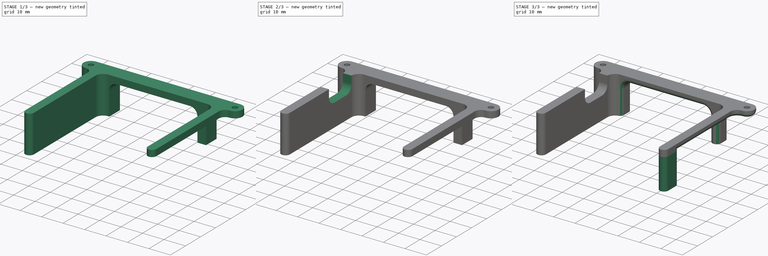
[diagram: build sequence overview — one tinted view per stage of 3, left to right]
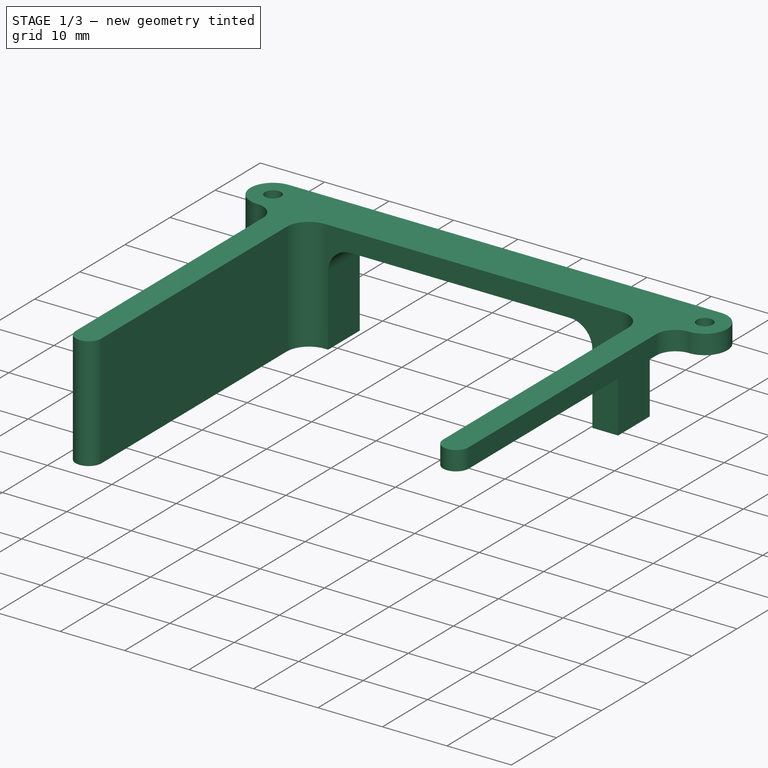
[diagram: stage 1 of 3 — iso view after this stage's code; geometry added in this stage tinted green]
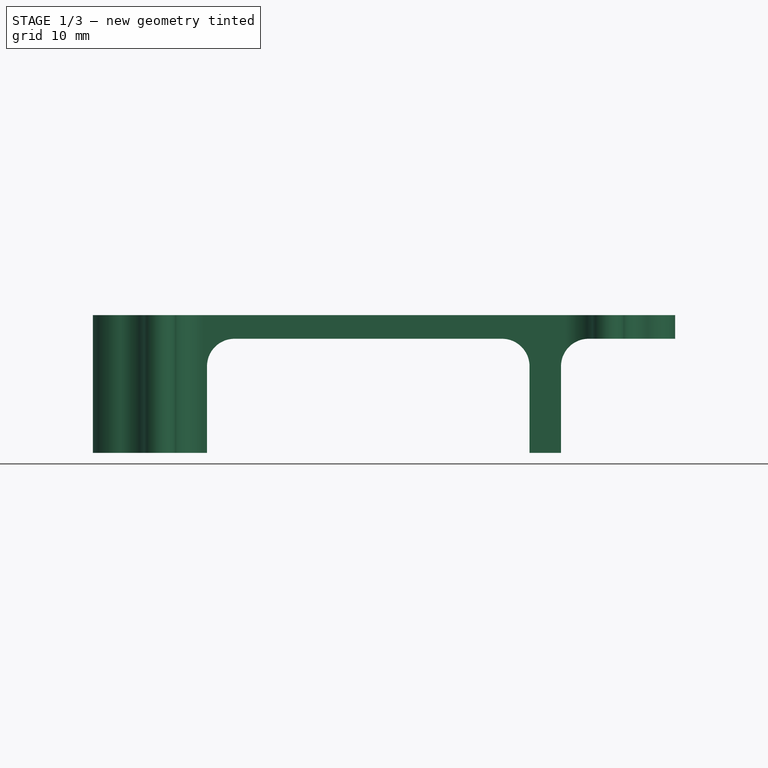
[diagram: stage 1 of 3 — front view after this stage's code; geometry added in this stage tinted green]
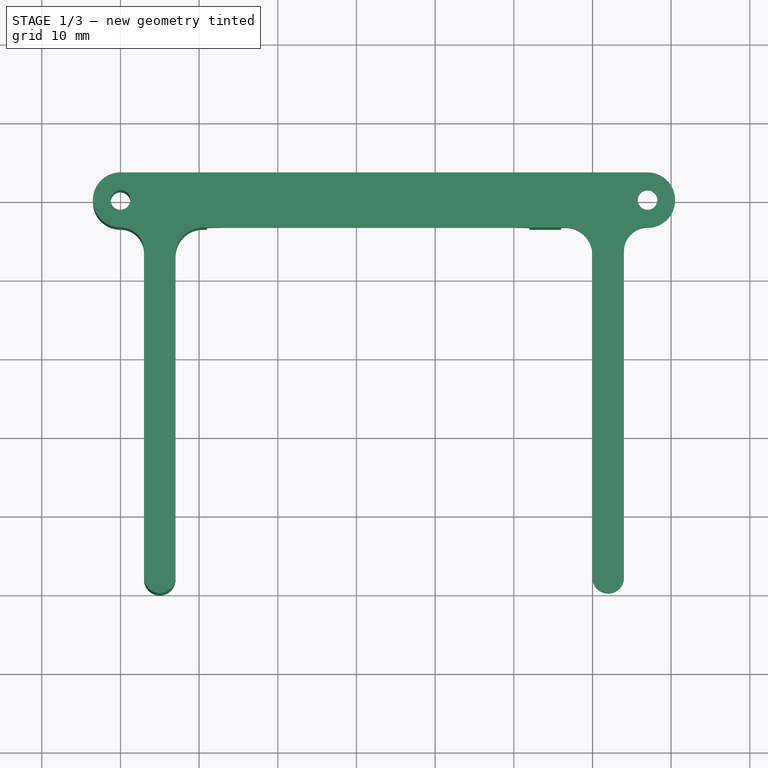
[diagram: stage 1 of 3 — top view after this stage's code; geometry added in this stage tinted green]
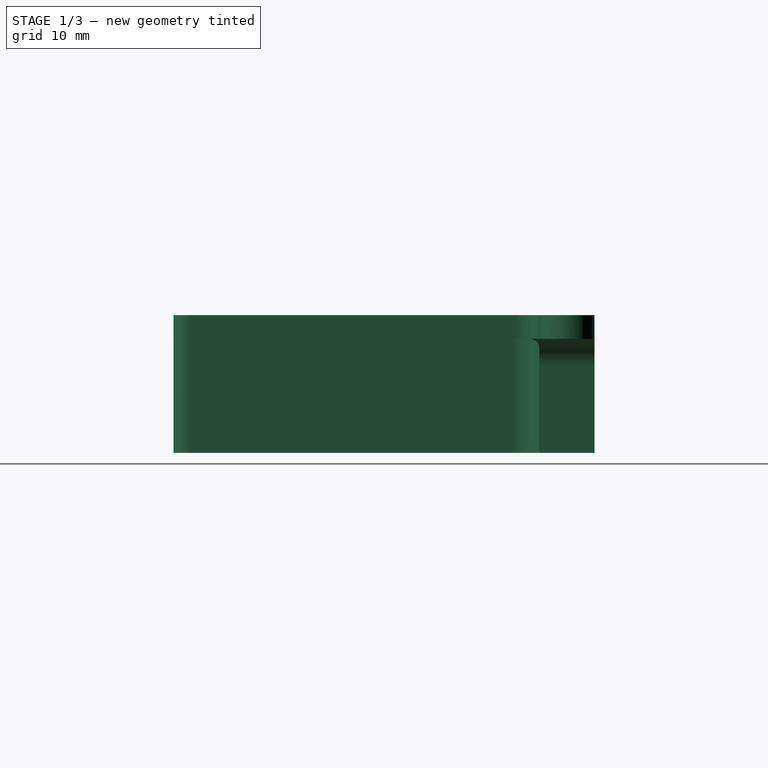
[diagram: stage 1 of 3 — right view after this stage's code; geometry added in this stage tinted green]
FCSTD DOCUMENT  (FreeCAD 0.21R33771 (Git))
Label: U1MB 600XL bracket
License: All rights reserved
LicenseURL: http://en.wikipedia.org/wiki/All_rights_reserved
objects: Sketcher::SketchObject×4, PartDesign::Pad×2, PartDesign::Pocket×2, PartDesign::Fillet×1, PartDesign::Body×1
note: 15 computed .brp shape members not serialized (recipe doc carries the construction recipe); baked Part::Feature solids carry a one-line shape summary decoded from their .brp

FEATURE [Sketcher::SketchObject] Sketch
  FullyConstrained = true
  MapMode = 5
  Support = -> [XY_Plane]
  sketch-geometry (16):
    g0: LineSegment StartX=-6e-16 StartY=3.5 StartZ=0 EndX=67 EndY=3.5 EndZ=0
    g1: ArcOfCircle CenterX=62 CenterY=-48 CenterZ=0 NormalX=0 NormalY=0 NormalZ=1 AngleXU=0 Radius=2 StartAngle=3.14159 EndAngle=6.28319
    g2: LineSegment StartX=60 StartY=-48 StartZ=0 EndX=60 EndY=-7 EndZ=0
    g3: ArcOfCircle CenterX=56.5 CenterY=-7 CenterZ=0 NormalX=0 NormalY=0 NormalZ=1 AngleXU=0 Radius=3.5 StartAngle=1e-16 EndAngle=1.5708
    g4: LineSegment StartX=56.5 StartY=-3.5 StartZ=0 EndX=10.5 EndY=-3.5 EndZ=0
    g5: ArcOfCircle CenterX=10.5 CenterY=-7 CenterZ=0 NormalX=0 NormalY=0 NormalZ=1 AngleXU=0 Radius=3.5 StartAngle=1.5708 EndAngle=3.14159
    g6: LineSegment StartX=7 StartY=-7 StartZ=0 EndX=7 EndY=-48 EndZ=0
    g7: ArcOfCircle CenterX=5 CenterY=-48 CenterZ=0 NormalX=0 NormalY=0 NormalZ=1 AngleXU=0 Radius=2 StartAngle=3.14159 EndAngle=6.28319
    g8: ArcOfCircle CenterX=-6e-16 CenterY=0 CenterZ=0 NormalX=0 NormalY=0 NormalZ=1 AngleXU=0 Radius=3.5 StartAngle=1.5708 EndAngle=4.71239
    g9: Circle CenterX=-6e-16 CenterY=0 CenterZ=0 NormalX=0 NormalY=0 NormalZ=1 AngleXU=0 Radius=1.25
    g10: Circle CenterX=67 CenterY=0 CenterZ=0 NormalX=0 NormalY=0 NormalZ=1 AngleXU=0 Radius=1.25
    g11: LineSegment StartX=3 StartY=-48 StartZ=0 EndX=3 EndY=-6.5 EndZ=0
    g12: LineSegment StartX=64 StartY=-48 StartZ=0 EndX=64 EndY=-6.5 EndZ=0
    g13: ArcOfCircle CenterX=-6e-16 CenterY=-6.5 CenterZ=0 NormalX=0 NormalY=0 NormalZ=1 AngleXU=0 Radius=3 StartAngle=0 EndAngle=1.5708
    g14: ArcOfCircle CenterX=67 CenterY=-6.5 CenterZ=0 NormalX=0 NormalY=0 NormalZ=1 AngleXU=0 Radius=3 StartAngle=1.5708 EndAngle=3.14159
    g15: ArcOfCircle CenterX=67 CenterY=0 CenterZ=0 NormalX=0 NormalY=0 NormalZ=1 AngleXU=0 Radius=3.5 StartAngle=4.71239 EndAngle=7.85398
  constraints (50):
    c: Coincident(g1,g2)
    c: Vertical(g2)
    c: Tangent(g2,g3) = -1.5708
    c: Coincident(g3,g4)
    c: Horizontal(g4)
    c: Tangent(g4,g5) = -1.5708
    c: Coincident(g5,g6)
    c: Vertical(g6)
    c: Tangent(g6,g7) = 1.5708
    c: Coincident(g0,g8)
    c: Equal(g8,g3)
    c: Equal(g8,g5)
    c: Horizontal(g1,g1)
    c: Horizontal(g7,g7)
    c: Horizontal(g0)
    c: Vertical(g0,g8)
    c: Vertical(g3,g3)
    c: Horizontal(g5,g5)
    c: Diameter(g8) = 7
    c: Coincident(g-1,g8)
    c: Equal(g9,g10)
    c: Horizontal(g9,g10)
    c: Diameter(g9) = 2.5
    c: DistanceX(g9,g10) = 67
    c: Vertical(g0,g10)
    c: Coincident(g9,g8)
    c: DistanceY(g7,g8) = 48
    c: DistanceY(g4,g0) = 7
    c: DistanceX(g1,g10) = 5
    c: Diameter(g1) = 4
    c: Equal(g7,g1)
    c: DistanceX(g8,g7) = 5
    c: Vertical(g8,g0)
    c: Vertical(g14,g0)
    c: Coincident(g11,g7)
    c: Vertical(g11)
    c: Coincident(g12,g1)
    c: Vertical(g12)
    c: Coincident(g13,g11)
    c: Coincident(g13,g8)
    c: Horizontal(g13,g11)
    c: Vertical(g13,g8)
    c: Coincident(g14,g12)
    c: Vertical(g14,g14)
    c: Horizontal(g12,g14)
    c: Horizontal(g1,g1)
    c: Horizontal(g7,g1)
    c: Coincident(g15,g10)
    c: Coincident(g15,g14)
    c: Coincident(g15,g0)
FEATURE [PartDesign::Pad] Pad
  Direction = (0,0,1)
  Length = 17.5
  Length2 = 10
  Profile = -> Sketch
  ReferenceAxis = -> Sketch [N_Axis]
  Reversed = true
  Type = 0
FEATURE [Sketcher::SketchObject] Sketch001
  ExternalGeometry = -> [Pad]
  FullyConstrained = true
  MapMode = 5
  Placement = pos=(0,3.5,0) rot=(0,0.707107,0.707107;3.14159rad)
  Support = -> [Pad]
  sketch-geometry (11):
    g0: LineSegment StartX=-11 StartY=-17.5 StartZ=0 EndX=-52 EndY=-17.5 EndZ=0
    g1: LineSegment StartX=-48.5 StartY=-3 StartZ=0 EndX=-14.5 EndY=-3 EndZ=0
    g2: LineSegment StartX=-11 StartY=-6.5 StartZ=0 EndX=-11 EndY=-17.5 EndZ=0
    g3: ArcOfCircle CenterX=-14.5 CenterY=-6.5 CenterZ=0 NormalX=0 NormalY=0 NormalZ=1 AngleXU=0 Radius=3.5 StartAngle=0 EndAngle=1.5708
    g4: LineSegment StartX=-52 StartY=-17.5 StartZ=0 EndX=-52 EndY=-6.5 EndZ=0
    g5: ArcOfCircle CenterX=-48.5 CenterY=-6.5 CenterZ=0 NormalX=0 NormalY=0 NormalZ=1 AngleXU=0 Radius=3.5 StartAngle=1.5708 EndAngle=3.14159
    g6: LineSegment StartX=-56 StartY=-17.5 StartZ=0 EndX=-56 EndY=-6.5 EndZ=0
    g7: ArcOfCircle CenterX=-59.5 CenterY=-6.5 CenterZ=0 NormalX=0 NormalY=0 NormalZ=1 AngleXU=0 Radius=3.5 StartAngle=0 EndAngle=1.5708
    g8: LineSegment StartX=-59.5 StartY=-3 StartZ=0 EndX=-70.5 EndY=-3 EndZ=0
    g9: LineSegment StartX=-70.5 StartY=-3 StartZ=0 EndX=-70.5 EndY=-17.5 EndZ=0
    g10: LineSegment StartX=-70.5 StartY=-17.5 StartZ=0 EndX=-56 EndY=-17.5 EndZ=0
  constraints (35):
    c: Horizontal(g0)
    c: Horizontal(g1)
    c: Coincident(g2,g0)
    c: Vertical(g2)
    c: Horizontal(g-4,g0)
    c: DistanceY(g1,g-1) = 3
    c: DistanceX(g0,g-4) = 8
    c: Coincident(g3,g2)
    c: Coincident(g3,g1)
    c: Horizontal(g3,g2)
    c: Vertical(g1,g3)
    c: Diameter(g3) = 7
    c: DistanceX(g-3,g0) = 15
    c: Coincident(g4,g0)
    c: Vertical(g4)
    c: Coincident(g5,g4)
    c: Coincident(g5,g1)
    c: Horizontal(g4,g5)
    c: Vertical(g1,g5)
    c: Equal(g3,g5)
    c: Vertical(g6)
    c: Tangent(g6,g7) = -1.5708
    c: Coincident(g7,g8)
    c: Horizontal(g8)
    c: Coincident(g8,g9)
    c: Vertical(g9)
    c: Coincident(g9,g10)
    c: Horizontal(g10)
    c: Coincident(g10,g6)
    c: Horizontal(g6,g0)
    c: Vertical(g7,g7)
    c: Horizontal(g6,g4)
    c: Equal(g3,g7)
    c: DistanceX(g6,g0) = 4
    c: DistanceX(g9,g-3) = 3.5
FEATURE [PartDesign::Pocket] Pocket
  BaseFeature = -> Pad
  Direction = (0,-1,2e-16)
  Length = 5
  Length2 = 5
  Midplane = true
  Profile = -> Sketch001
  ReferenceAxis = -> Sketch001 [N_Axis]
  Type = 1
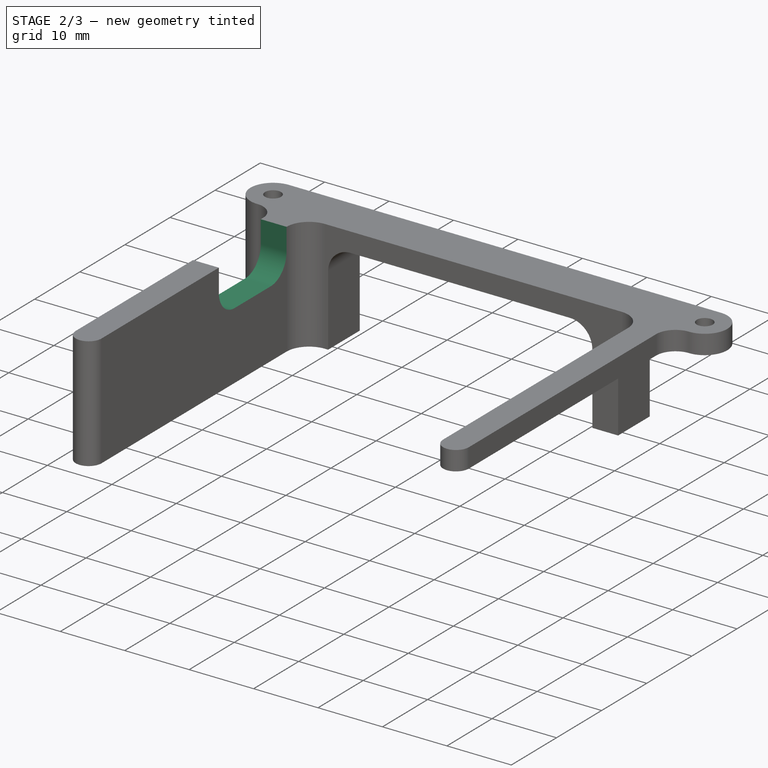
[diagram: stage 2 of 3 — iso view after this stage's code; geometry added in this stage tinted green]
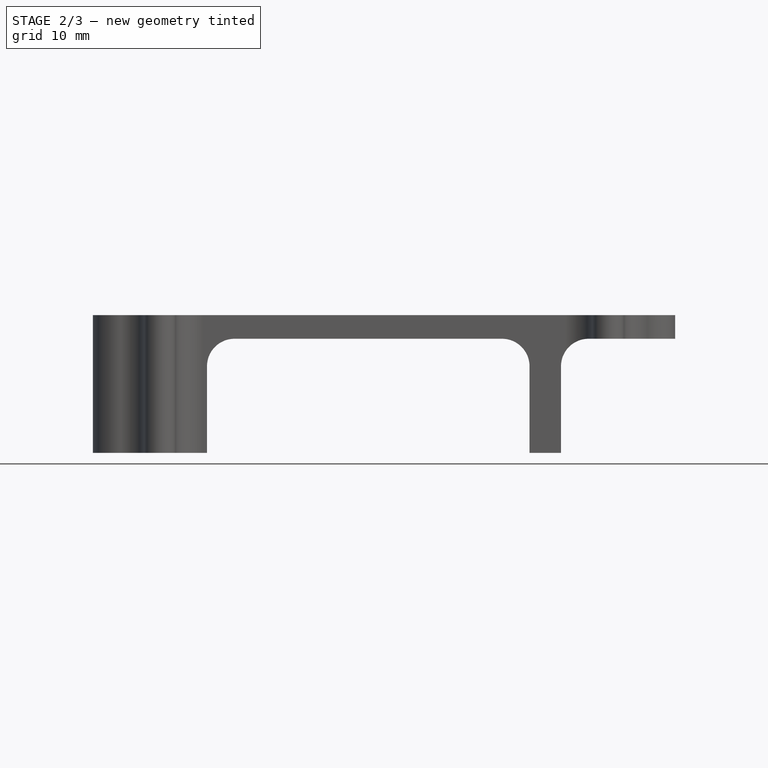
[diagram: stage 2 of 3 — front view after this stage's code; geometry added in this stage tinted green]
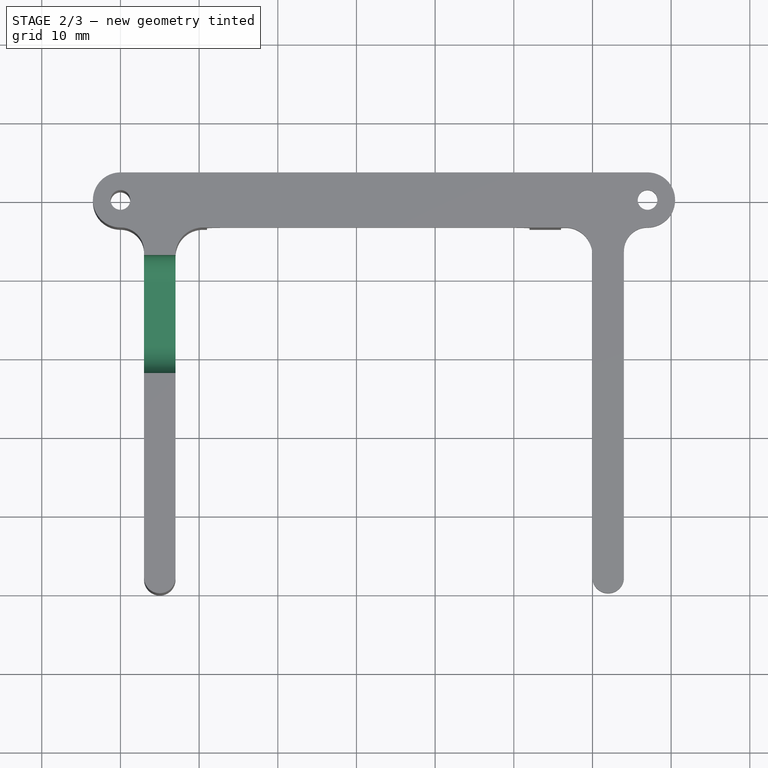
[diagram: stage 2 of 3 — top view after this stage's code; geometry added in this stage tinted green]
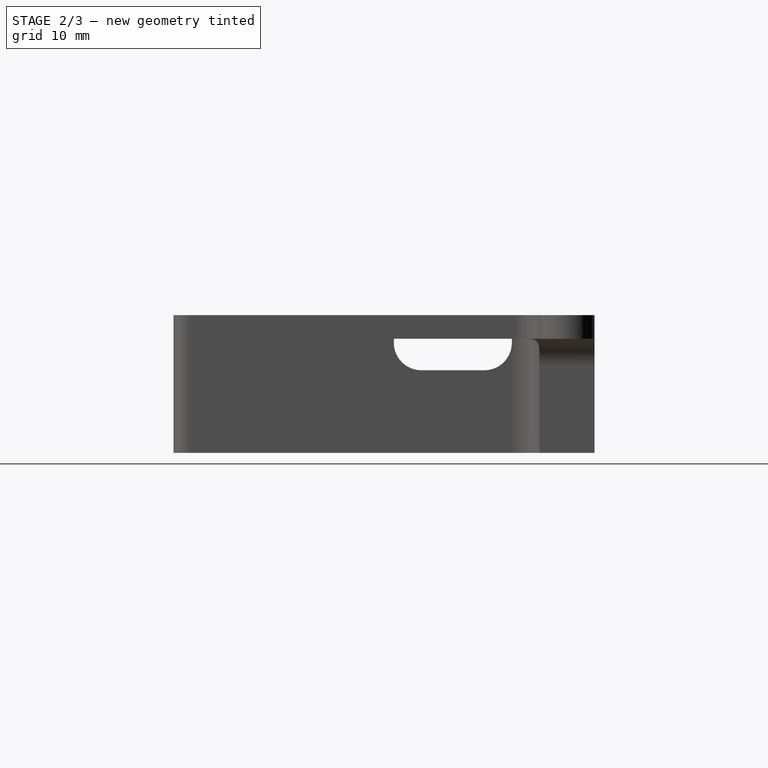
[diagram: stage 2 of 3 — right view after this stage's code; geometry added in this stage tinted green]
FEATURE [Sketcher::SketchObject] Sketch002
  FullyConstrained = true
  MapMode = 5
  Placement = pos=(3,0,0) rot=(0.57735,-0.57735,-0.57735;2.0944rad)
  Support = -> [Pocket]
  sketch-geometry (6):
    g0: LineSegment StartX=7 StartY=0 StartZ=0 EndX=7 EndY=-3.5 EndZ=0
    g1: ArcOfCircle CenterX=10.5 CenterY=-3.5 CenterZ=0 NormalX=0 NormalY=0 NormalZ=1 AngleXU=0 Radius=3.5 StartAngle=3.14159 EndAngle=4.71239
    g2: LineSegment StartX=10.5 StartY=-7 StartZ=0 EndX=18.5 EndY=-7 EndZ=0
    g3: ArcOfCircle CenterX=18.5 CenterY=-3.5 CenterZ=0 NormalX=0 NormalY=0 NormalZ=1 AngleXU=0 Radius=3.5 StartAngle=4.71239 EndAngle=6.28319
    g4: LineSegment StartX=22 StartY=-3.5 StartZ=0 EndX=22 EndY=0 EndZ=0
    g5: LineSegment StartX=22 StartY=0 StartZ=0 EndX=7 EndY=0 EndZ=0
  constraints (18):
    c: PointOnObject(g0,g-1)
    c: Vertical(g0)
    c: Tangent(g0,g1) = -1.5708
    c: Coincident(g1,g2)
    c: Horizontal(g2)
    c: Tangent(g2,g3) = -1.5708
    c: Coincident(g3,g4)
    c: PointOnObject(g4,g-1)
    c: Vertical(g4)
    c: Coincident(g4,g5)
    c: Coincident(g5,g0)
    c: DistanceX(g-1,g0) = 7
    c: DistanceX(g-1,g4) = 22
    c: Horizontal(g3,g3)
    c: Vertical(g1,g1)
    c: Equal(g3,g1)
    c: Diameter(g3) = 7
    c: DistanceY(g2,g4) = 7
FEATURE [PartDesign::Pocket] Pocket001
  BaseFeature = -> Pocket
  Direction = (1,0,0)
  Length = 5
  Length2 = 5
  Profile = -> Sketch002
  ReferenceAxis = -> Sketch002 [N_Axis]
  Type = 0
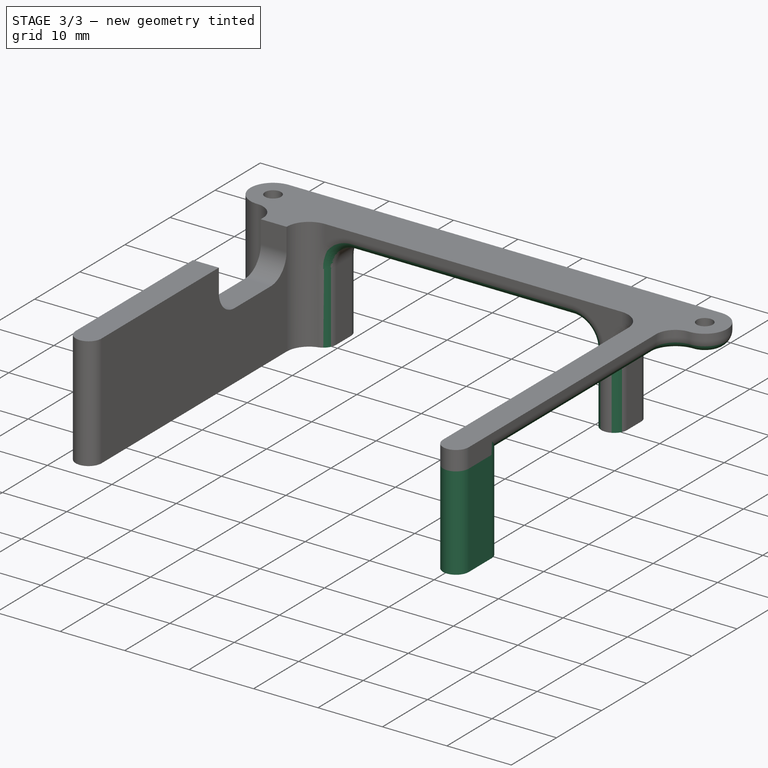
[diagram: stage 3 of 3 — iso view after this stage's code; geometry added in this stage tinted green]
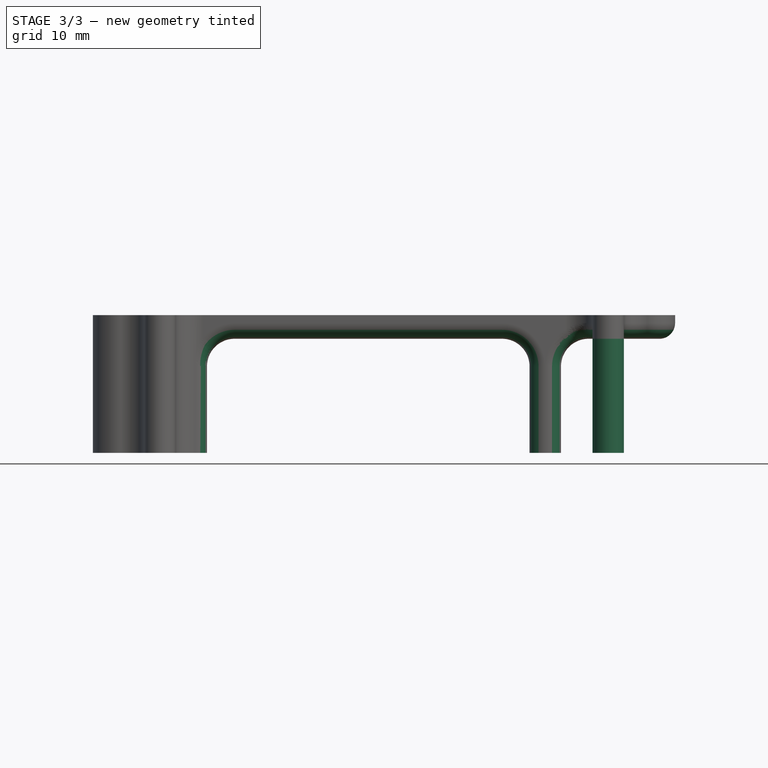
[diagram: stage 3 of 3 — front view after this stage's code; geometry added in this stage tinted green]
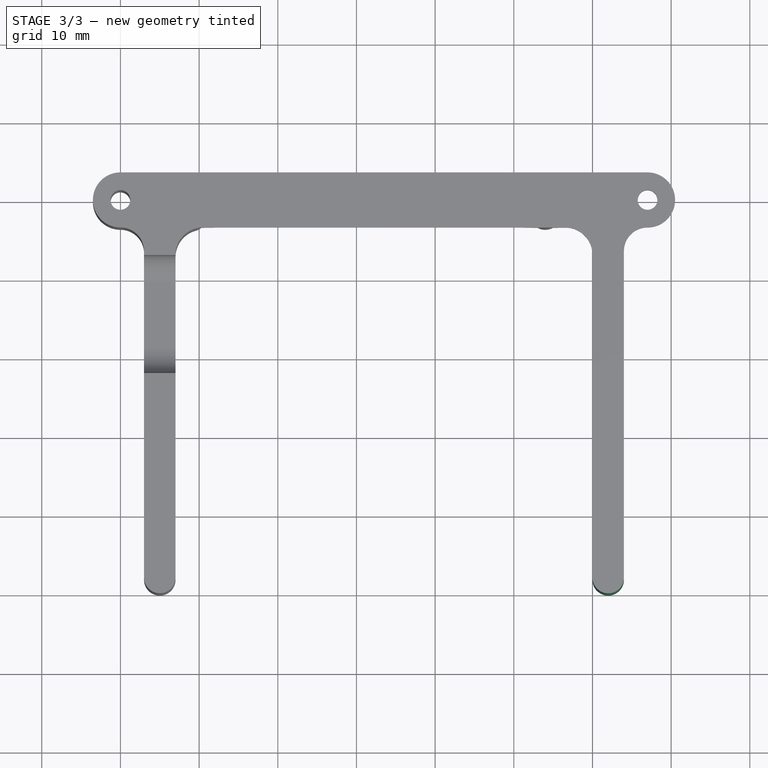
[diagram: stage 3 of 3 — top view after this stage's code; geometry added in this stage tinted green]
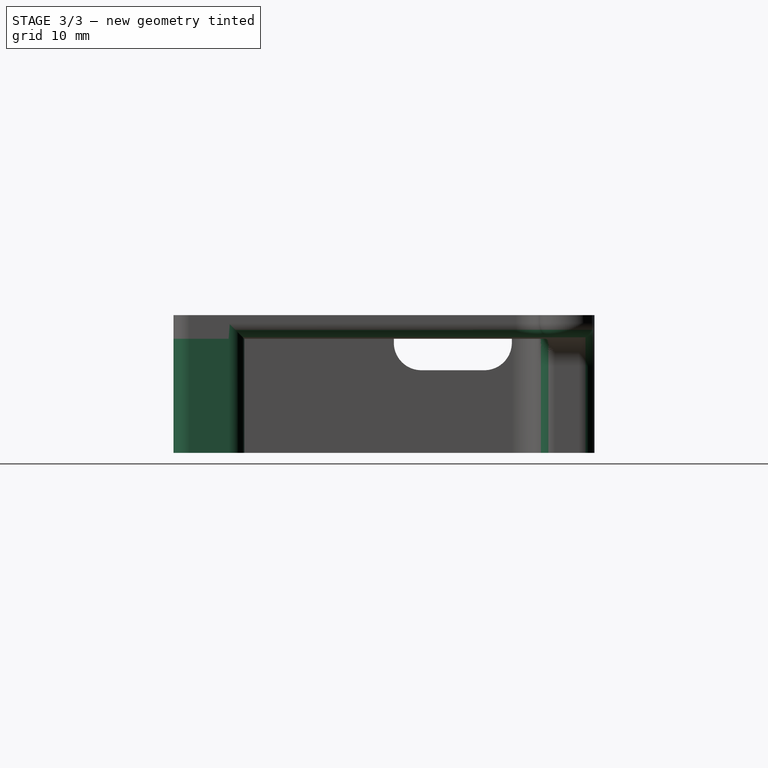
[diagram: stage 3 of 3 — right view after this stage's code; geometry added in this stage tinted green]
FEATURE [Sketcher::SketchObject] Sketch003
  ExternalGeometry = -> [Pocket001]
  FullyConstrained = true
  MapMode = 5
  Placement = pos=(0,-7e-16,-3) rot=(1,0,0;3.14159rad)
  Support = -> [Pocket001]
  sketch-geometry (4):
    g0: ArcOfCircle CenterX=62 CenterY=48 CenterZ=0 NormalX=0 NormalY=0 NormalZ=1 AngleXU=0 Radius=2 StartAngle=1.3e-15 EndAngle=3.14159
    g1: ArcOfCircle CenterX=62 CenterY=43 CenterZ=0 NormalX=0 NormalY=0 NormalZ=1 AngleXU=0 Radius=2 StartAngle=3.14159 EndAngle=6.28319
    g2: LineSegment StartX=60 StartY=48 StartZ=0 EndX=60 EndY=43 EndZ=0
    g3: LineSegment StartX=64 StartY=43 StartZ=0 EndX=64 EndY=48 EndZ=0
  constraints (8):
    c: Tangent(g0,g2) = -1.5708
    c: Tangent(g2,g1) = -1.5708
    c: Tangent(g1,g3) = -1.5708
    c: Tangent(g3,g0) = -1.5708
    c: Equal(g0,g1)
    c: Coincident(g0,g-3)
    c: Coincident(g0,g-3)
    c: DistanceY(g1,g0) = 5
FEATURE [PartDesign::Pad] Pad001
  BaseFeature = -> Pocket001
  Direction = (0,-2e-16,-1)
  Length = 14.5
  Length2 = 10
  Profile = -> Sketch003
  ReferenceAxis = -> Sketch003 [N_Axis]
  Type = 0
FEATURE [PartDesign::Fillet] Fillet
  Base = -> Pad001 [Edge77,Edge60,Edge54,Edge56,Edge83,Edge81]
  BaseFeature = -> Pad001
  Radius = 1.99
  SupportTransform = false
  UseAllEdges = false
FEATURE [PartDesign::Body] Body
  Group = -> [Sketch,Pad,Sketch001,Pocket,Sketch002,Pocket001,Sketch003,Pad001,Fillet]
  Origin = -> Origin
  Tip = -> Fillet
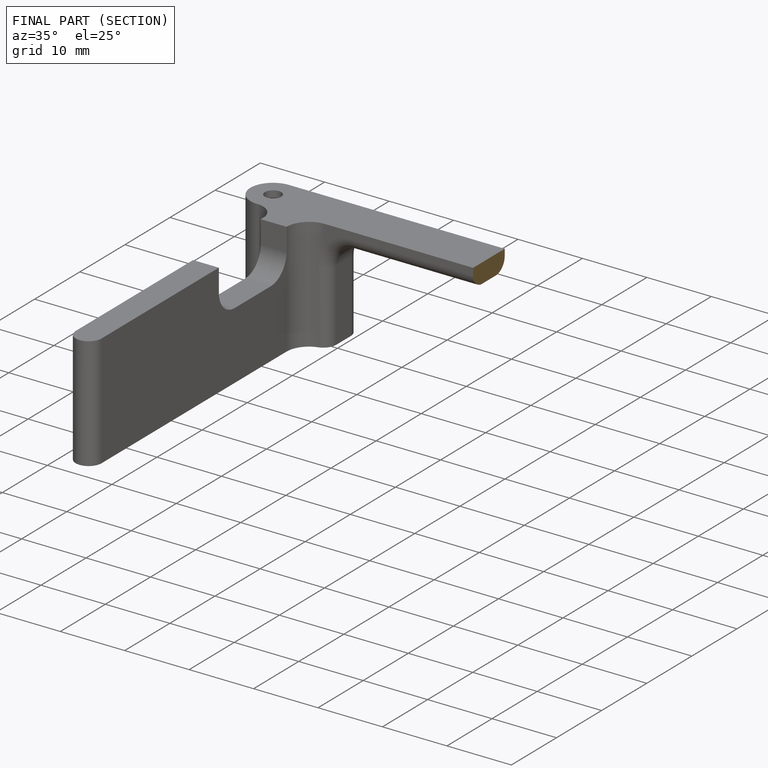
[diagram: finished part — half-section view (interior)]
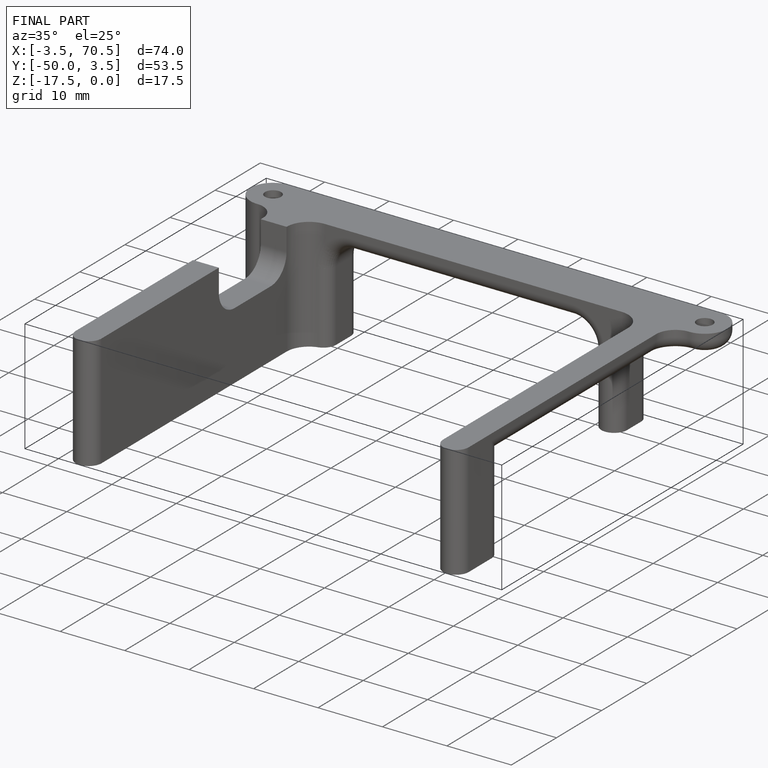
[diagram: finished part — iso view with bounding-box wireframe]
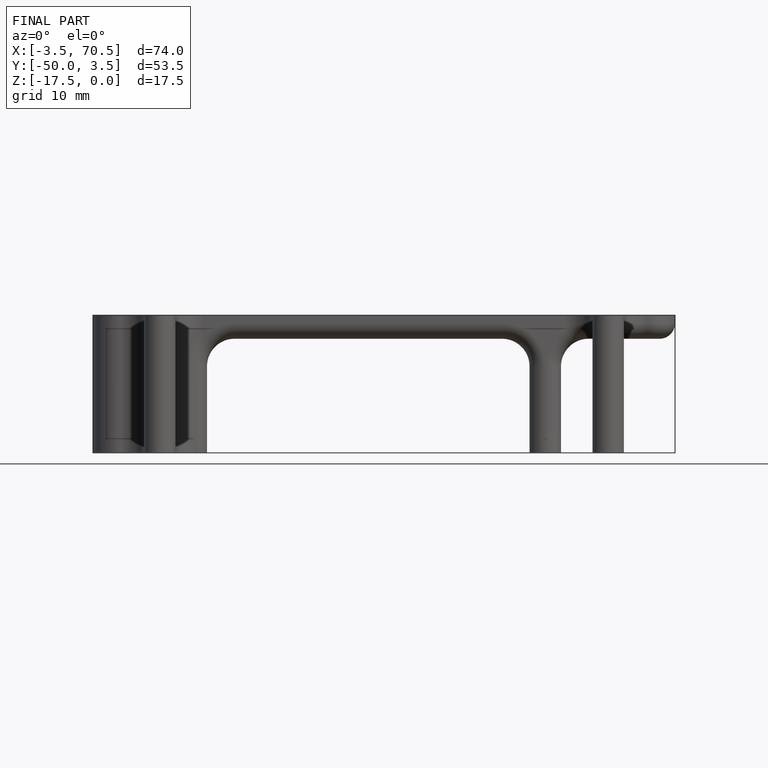
[diagram: finished part — front view with bounding-box wireframe]
